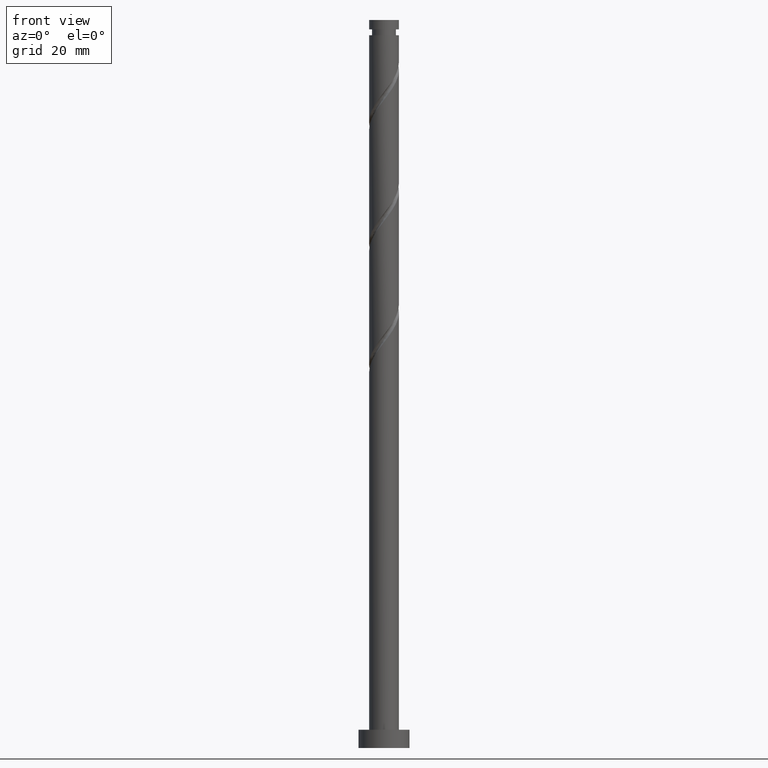
[diagram: clean part render]
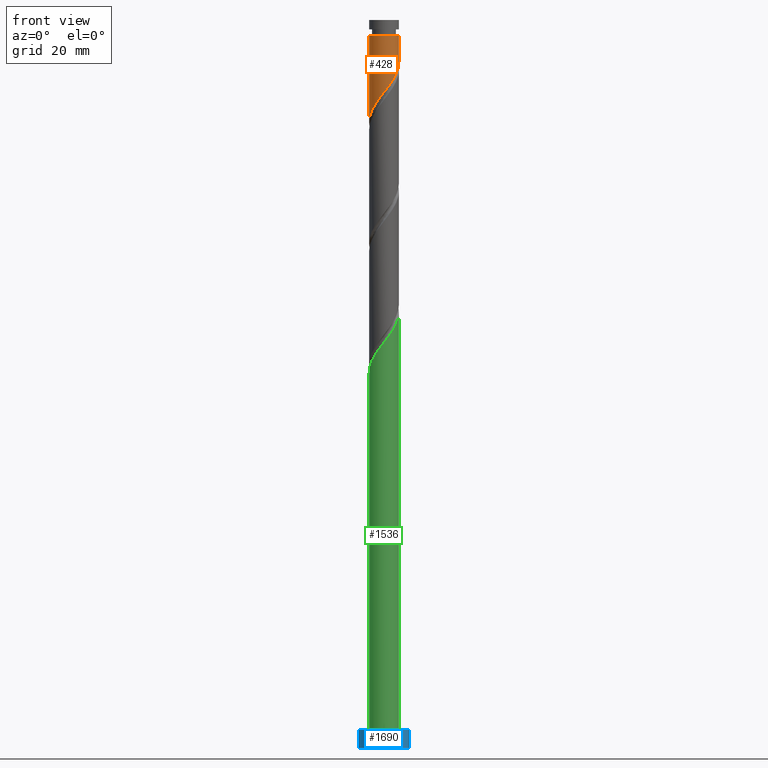
[diagram: same view with three faces highlighted in distinct colors, each labeled with its STEP entity id]
A machine part, front view with three faces highlighted in distinct colors.
Their STEP definitions:

[orange] entity #428 — the highlighted cylindrical surface (edge-blend (fillet) strip) has radius 4.1 mm, axis along (-0, -0, -1).
#15 = ORIENTED_EDGE ( 'NONE', *, *, #723, .T. ) ;
#24 = CARTESIAN_POINT ( 'NONE',  ( 0.2518459921076728891, -4.092257762685448164, 180.5317985425583061 ) ) ;
#42 = CARTESIAN_POINT ( 'NONE',  ( 0.7906019473366200367, -4.059101608817096363, 181.2262429870026779 ) ) ;
#51 = CARTESIAN_POINT ( 'NONE',  ( 3.910586083446199179, -1.344869433733589137, 186.7817985425582208 ) ) ;
#93 = CARTESIAN_POINT ( 'NONE',  ( 4.099999999999987210, 5.021051876504139497E-16, 195.8095763203360207 ) ) ;
#99 = EDGE_CURVE ( 'NONE', #527, #628, #1637, .T. ) ;
#161 = CARTESIAN_POINT ( 'NONE',  ( -3.418076185265831679, -2.264233908349265079, 174.9762429870027347 ) ) ;
#176 = CARTESIAN_POINT ( 'NONE',  ( 3.669922177373502681, -1.828023854336185305, 186.0873540981138490 ) ) ;
#187 = CARTESIAN_POINT ( 'NONE',  ( 1.302418794475820096, -3.887634921619589345, 181.9206874314471349 ) ) ;
#196 = CARTESIAN_POINT ( 'NONE',  ( 3.071745223192158480, -2.715581205524181474, 184.6984652092249348 ) ) ;
#217 = CIRCLE ( 'NONE', #430, 4.099999999999987210 ) ;
#298 = ORIENTED_EDGE ( 'NONE', *, *, #1639, .F. ) ;
#300 = CARTESIAN_POINT ( 'NONE',  ( 4.100000000000000533, 1.076672479940649209E-15, 188.5398096422127594 ) ) ;
#357 = LINE ( 'NONE', #893, #1253 ) ;
#413 = DIRECTION ( 'NONE',  ( -1.000000000000000000, 0.000000000000000000, 0.000000000000000000 ) ) ;
#417 = CARTESIAN_POINT ( 'NONE',  ( -3.887634921619589345, -1.302418794475820540, 173.5873540981138206 ) ) ;
#428 = ADVANCED_FACE ( 'NONE', ( #615 ), #1183, .T. ) ;
#430 = AXIS2_PLACEMENT_3D ( 'NONE', #823, #1628, #413 ) ;
#436 = CARTESIAN_POINT ( 'NONE',  ( -2.715581205524180142, -3.071745223192158480, 176.3651318758916204 ) ) ;
#452 = CARTESIAN_POINT ( 'NONE',  ( -4.100000000000000533, -2.168298744324918456E-15, 171.8731429755461022 ) ) ;
#526 = CARTESIAN_POINT ( 'NONE',  ( 4.099999999999999645, 5.021051876504147385E-16, 200.0000000000000000 ) ) ;
#527 = VERTEX_POINT ( 'NONE', #93 ) ;
#561 = CARTESIAN_POINT ( 'NONE',  ( 4.099999999999999645, -0.4120655042562831882, 188.0063832730234594 ) ) ;
#581 = CARTESIAN_POINT ( 'NONE',  ( -3.716168234422083216, -1.814235641615018713, 174.2817985425582208 ) ) ;
#610 = CARTESIAN_POINT ( 'NONE',  ( -4.100000000000000533, -2.168298744324918456E-15, 171.8731429755461022 ) ) ;
#615 = FACE_OUTER_BOUND ( 'NONE', #693, .T. ) ;
#628 = VERTEX_POINT ( 'NONE', #1704 ) ;
#693 = EDGE_LOOP ( 'NONE', ( #1191, #15, #1072, #298 ) ) ;
#703 = CARTESIAN_POINT ( 'NONE',  ( -4.059101608817095475, -0.7906019473366212580, 172.8929096536693635 ) ) ;
#712 = CARTESIAN_POINT ( 'NONE',  ( 3.429258271300806626, -2.311178274938779698, 185.3929096536693635 ) ) ;
#720 = CARTESIAN_POINT ( 'NONE',  ( -0.2869099631212743140, -4.125413916553799076, 179.8373540981138206 ) ) ;
#723 = EDGE_CURVE ( 'NONE', #527, #1065, #217, .T. ) ;
#755 = DIRECTION ( 'NONE',  ( -0.000000000000000000, -0.000000000000000000, -1.000000000000000000 ) ) ;
#757 = DIRECTION ( 'NONE',  ( -0.000000000000000000, -0.000000000000000000, -1.000000000000000000 ) ) ;
#823 = CARTESIAN_POINT ( 'NONE',  ( 0.000000000000000000, 0.000000000000000000, 195.8095763203360207 ) ) ;
#835 = CARTESIAN_POINT ( 'NONE',  ( 1.814235641615018713, -3.716168234422083216, 182.6151318758915352 ) ) ;
#843 = CARTESIAN_POINT ( 'NONE',  ( -1.828023854336183307, -3.669922177373504901, 177.7540207647804777 ) ) ;
#893 = CARTESIAN_POINT ( 'NONE',  ( -4.099999999999999645, 0.000000000000000000, 200.0000000000000000 ) ) ;
#961 =( BOUNDED_CURVE ( )  B_SPLINE_CURVE ( 2, ( #300, #561, #1406, #51, #176, #712, #196, #1251, #1397, #835, #187, #42, #24, #720, #1242, #1668, #843, #1097, #436, #984, #161, #581, #417, #703, #1116, #1228, #452 ),
 .UNSPECIFIED., .F., .T. ) 
 B_SPLINE_CURVE_WITH_KNOTS ( ( 3, 2, 2, 2, 2, 2, 2, 2, 2, 2, 2, 2, 2, 3 ),
 ( 0.3045317669814463502, 0.3125000000000000000, 0.3229166666666666852, 0.3333333333333333148, 0.3437500000000000000, 0.3541666666666666852, 0.3645833333333333148, 0.3750000000000000000, 0.3854166666666666852, 0.3958333333333333148, 0.4062500000000000000, 0.4166666666666666852, 0.4270833333333333148, 0.4295317669814463502 ),
 .UNSPECIFIED. ) 
 CURVE ( )  GEOMETRIC_REPRESENTATION_ITEM ( )  RATIONAL_B_SPLINE_CURVE ( ( 0.9062941362546419466, 0.9031415850403462509, 0.9090909090909213841, 0.9013135103398399739, 0.9090909090909213841, 0.9013135103398399739, 0.9090909090909213841, 0.9013135103398399739, 0.9090909090909213841, 0.9013135103398399739, 0.9090909090909213841, 0.9013135103398399739, 0.9090909090909213841, 0.9013135103398399739, 0.9090909090909213841, 0.9013135103398399739, 0.9090909090909213841, 0.9013135103398399739, 0.9090909090909213841, 0.9013135103398399739, 0.9090909090909213841, 0.9013135103398399739, 0.9090909090909213841, 0.9013135103398399739, 0.9090909090909213841, 0.9072628343904152182, 0.9062941362546419466 ) ) 
 REPRESENTATION_ITEM ( '' )  );
#977 = CARTESIAN_POINT ( 'NONE',  ( -4.099999999999987210, 0.000000000000000000, 195.8095763203360207 ) ) ;
#984 = CARTESIAN_POINT ( 'NONE',  ( -3.119984136109579254, -2.714232175083509446, 175.6706874314471065 ) ) ;
#1061 = DIRECTION ( 'NONE',  ( -0.000000000000000000, -0.000000000000000000, -1.000000000000000000 ) ) ;
#1065 = VERTEX_POINT ( 'NONE', #977 ) ;
#1072 = ORIENTED_EDGE ( 'NONE', *, *, #1409, .T. ) ;
#1097 = CARTESIAN_POINT ( 'NONE',  ( -2.311178274938777477, -3.429258271300808403, 177.0595763203359922 ) ) ;
#1116 = CARTESIAN_POINT ( 'NONE',  ( -4.092257762685448164, -0.2518459921076742214, 172.1984652092249632 ) ) ;
#1183 = CYLINDRICAL_SURFACE ( 'NONE', #1618, 4.099999999999999645 ) ;
#1191 = ORIENTED_EDGE ( 'NONE', *, *, #99, .F. ) ;
#1214 = VERTEX_POINT ( 'NONE', #610 ) ;
#1228 = CARTESIAN_POINT ( 'NONE',  ( -4.100000000000000533, -0.1260420017964555273, 172.0363066635742371 ) ) ;
#1242 = CARTESIAN_POINT ( 'NONE',  ( -0.8158896984274304209, -4.018000000000000682, 179.1429096536694487 ) ) ;
#1251 = CARTESIAN_POINT ( 'NONE',  ( 2.714232175083508558, -3.119984136109578809, 184.0040207647804493 ) ) ;
#1253 = VECTOR ( 'NONE', #757, 1000.000000000000000 ) ;
#1337 = VECTOR ( 'NONE', #1061, 1000.000000000000000 ) ;
#1397 = CARTESIAN_POINT ( 'NONE',  ( 2.264233908349262858, -3.418076185265833011, 183.3095763203360491 ) ) ;
#1406 = CARTESIAN_POINT ( 'NONE',  ( 4.018000000000000682, -0.8158896984274305320, 187.4762429870026779 ) ) ;
#1409 = EDGE_CURVE ( 'NONE', #1065, #1214, #357, .T. ) ;
#1596 = DIRECTION ( 'NONE',  ( -1.000000000000000000, 0.000000000000000000, 0.000000000000000000 ) ) ;
#1618 = AXIS2_PLACEMENT_3D ( 'NONE', #1728, #755, #1596 ) ;
#1628 = DIRECTION ( 'NONE',  ( -0.000000000000000000, -0.000000000000000000, -1.000000000000000000 ) ) ;
#1637 = LINE ( 'NONE', #526, #1337 ) ;
#1639 = EDGE_CURVE ( 'NONE', #628, #1214, #961, .T. ) ;
#1668 = CARTESIAN_POINT ( 'NONE',  ( -1.344869433733588027, -3.910586083446200956, 178.4484652092249064 ) ) ;
#1704 = CARTESIAN_POINT ( 'NONE',  ( 4.100000000000000533, 1.076672479940649209E-15, 188.5398096422127594 ) ) ;
#1728 = CARTESIAN_POINT ( 'NONE',  ( 0.000000000000000000, 0.000000000000000000, 200.0000000000000000 ) ) ;

[blue] entity #1690 — the highlighted cylindrical surface (edge-blend (fillet) strip) has radius 7 mm, axis along (-0, -0, -1).
#33 = CARTESIAN_POINT ( 'NONE',  ( 0.000000000000000000, 0.000000000000000000, 5.000000000000000000 ) ) ;
#38 = CIRCLE ( 'NONE', #1307, 7.000000000000000000 ) ;
#82 = VERTEX_POINT ( 'NONE', #1487 ) ;
#102 = CARTESIAN_POINT ( 'NONE',  ( -7.000000000000000000, 0.000000000000000000, 5.000000000000000000 ) ) ;
#111 = CARTESIAN_POINT ( 'NONE',  ( 7.000000000000000000, 8.572527594031473190E-16, 5.000000000000000000 ) ) ;
#182 = CIRCLE ( 'NONE', #1223, 7.000000000000000000 ) ;
#212 = EDGE_CURVE ( 'NONE', #1486, #82, #692, .T. ) ;
#246 = EDGE_CURVE ( 'NONE', #1587, #82, #38, .T. ) ;
#250 = LINE ( 'NONE', #102, #294 ) ;
#284 = EDGE_CURVE ( 'NONE', #1662, #1486, #182, .T. ) ;
#294 = VECTOR ( 'NONE', #1569, 1000.000000000000000 ) ;
#299 = CARTESIAN_POINT ( 'NONE',  ( 7.000000000000000000, 8.572527594031473190E-16, 5.000000000000000000 ) ) ;
#317 = DIRECTION ( 'NONE',  ( 1.000000000000000000, 0.000000000000000000, 0.000000000000000000 ) ) ;
#393 = DIRECTION ( 'NONE',  ( -0.000000000000000000, -0.000000000000000000, -1.000000000000000000 ) ) ;
#451 = DIRECTION ( 'NONE',  ( 1.000000000000000000, 0.000000000000000000, 0.000000000000000000 ) ) ;
#472 = DIRECTION ( 'NONE',  ( 0.000000000000000000, 0.000000000000000000, 1.000000000000000000 ) ) ;
#589 = CARTESIAN_POINT ( 'NONE',  ( -7.000000000000000000, 0.000000000000000000, 5.000000000000000000 ) ) ;
#594 = EDGE_CURVE ( 'NONE', #1662, #1587, #250, .T. ) ;
#617 = ORIENTED_EDGE ( 'NONE', *, *, #246, .T. ) ;
#692 = LINE ( 'NONE', #299, #884 ) ;
#695 = CYLINDRICAL_SURFACE ( 'NONE', #1680, 7.000000000000000000 ) ;
#884 = VECTOR ( 'NONE', #393, 1000.000000000000000 ) ;
#964 = DIRECTION ( 'NONE',  ( -0.000000000000000000, -0.000000000000000000, -1.000000000000000000 ) ) ;
#983 = CARTESIAN_POINT ( 'NONE',  ( 0.000000000000000000, 0.000000000000000000, 5.000000000000000000 ) ) ;
#1202 = ORIENTED_EDGE ( 'NONE', *, *, #284, .F. ) ;
#1223 = AXIS2_PLACEMENT_3D ( 'NONE', #983, #1414, #451 ) ;
#1307 = AXIS2_PLACEMENT_3D ( 'NONE', #1687, #472, #317 ) ;
#1330 = ORIENTED_EDGE ( 'NONE', *, *, #594, .T. ) ;
#1371 = FACE_OUTER_BOUND ( 'NONE', #1510, .T. ) ;
#1414 = DIRECTION ( 'NONE',  ( 0.000000000000000000, 0.000000000000000000, 1.000000000000000000 ) ) ;
#1469 = CARTESIAN_POINT ( 'NONE',  ( -7.000000000000000000, 0.000000000000000000, 0.000000000000000000 ) ) ;
#1486 = VERTEX_POINT ( 'NONE', #111 ) ;
#1487 = CARTESIAN_POINT ( 'NONE',  ( 7.000000000000000000, 8.572527594031473190E-16, 0.000000000000000000 ) ) ;
#1509 = DIRECTION ( 'NONE',  ( -1.000000000000000000, 0.000000000000000000, 0.000000000000000000 ) ) ;
#1510 = EDGE_LOOP ( 'NONE', ( #1736, #1202, #1330, #617 ) ) ;
#1569 = DIRECTION ( 'NONE',  ( -0.000000000000000000, -0.000000000000000000, -1.000000000000000000 ) ) ;
#1587 = VERTEX_POINT ( 'NONE', #1469 ) ;
#1662 = VERTEX_POINT ( 'NONE', #589 ) ;
#1680 = AXIS2_PLACEMENT_3D ( 'NONE', #33, #964, #1509 ) ;
#1687 = CARTESIAN_POINT ( 'NONE',  ( 0.000000000000000000, 0.000000000000000000, 0.000000000000000000 ) ) ;
#1690 = ADVANCED_FACE ( 'NONE', ( #1371 ), #695, .T. ) ;
#1736 = ORIENTED_EDGE ( 'NONE', *, *, #212, .F. ) ;

[green] entity #1536 — the highlighted cylindrical surface (edge-blend (fillet) strip) has radius 4.1 mm, axis along (-0, -0, -1).
#16 = CARTESIAN_POINT ( 'NONE',  ( 4.099999999999999645, 5.021051876504147385E-16, 200.0000000000000000 ) ) ;
#21 = EDGE_CURVE ( 'NONE', #464, #818, #154, .T. ) ;
#71 = VECTOR ( 'NONE', #862, 1000.000000000000000 ) ;
#107 = CARTESIAN_POINT ( 'NONE',  ( -3.071745223192163810, -2.715581205524180142, 106.9206874314470923 ) ) ;
#136 = CARTESIAN_POINT ( 'NONE',  ( -0.2518459921076766084, -4.092257762685451716, 111.0873540981137637 ) ) ;
#154 = CIRCLE ( 'NONE', #1507, 4.099999999999999645 ) ;
#179 = CARTESIAN_POINT ( 'NONE',  ( 3.716168234422086769, -1.814235641615024042, 117.3373540981137921 ) ) ;
#189 = CARTESIAN_POINT ( 'NONE',  ( 3.887634921619593342, -1.302418794475825203, 118.0317985425582208 ) ) ;
#199 = CARTESIAN_POINT ( 'NONE',  ( 4.100000000000004974, -0.1260420017964651862, 119.5828459770978043 ) ) ;
#276 = DIRECTION ( 'NONE',  ( -0.000000000000000000, -0.000000000000000000, -1.000000000000000000 ) ) ;
#320 = CARTESIAN_POINT ( 'NONE',  ( -0.7906019473366246997, -4.059101608817101692, 110.3929096536693493 ) ) ;
#327 = LINE ( 'NONE', #16, #71 ) ;
#337 = ORIENTED_EDGE ( 'NONE', *, *, #1610, .F. ) ;
#339 = CARTESIAN_POINT ( 'NONE',  ( 4.100000000000004974, 4.635673177522212615E-16, 119.7460096651259391 ) ) ;
#385 = ORIENTED_EDGE ( 'NONE', *, *, #21, .T. ) ;
#410 = CYLINDRICAL_SURFACE ( 'NONE', #1566, 4.099999999999999645 ) ;
#438 = CARTESIAN_POINT ( 'NONE',  ( 0.2869099631212713164, -4.125413916553803517, 111.7817985425582350 ) ) ;
#464 = VERTEX_POINT ( 'NONE', #1150 ) ;
#512 = CARTESIAN_POINT ( 'NONE',  ( -1.814235641615024042, -3.716168234422086769, 109.0040207647804635 ) ) ;
#644 = CARTESIAN_POINT ( 'NONE',  ( -2.714232175083516552, -3.119984136109581918, 107.6151318758915920 ) ) ;
#650 = DIRECTION ( 'NONE',  ( -1.000000000000000000, 0.000000000000000000, 0.000000000000000000 ) ) ;
#652 = EDGE_LOOP ( 'NONE', ( #337, #797, #1188, #385 ) ) ;
#654 = CARTESIAN_POINT ( 'NONE',  ( -1.302418794475824981, -3.887634921619593342, 109.6984652092248780 ) ) ;
#666 = VERTEX_POINT ( 'NONE', #1166 ) ;
#674 = CARTESIAN_POINT ( 'NONE',  ( 4.059101608817101692, -0.7906019473366266981, 118.7262429870026779 ) ) ;
#722 = CARTESIAN_POINT ( 'NONE',  ( 4.092257762685450828, -0.2518459921076786068, 119.4206874314471065 ) ) ;
#772 =( BOUNDED_CURVE ( )  B_SPLINE_CURVE ( 2, ( #1584, #1595, #1325, #912, #777, #1316, #107, #644, #1180, #512, #654, #320, #136, #438, #1660, #937, #1408, #994, #1529, #986, #1682, #179, #189, #674, #722, #199, #1135 ),
 .UNSPECIFIED., .F., .T. ) 
 B_SPLINE_CURVE_WITH_KNOTS ( ( 3, 2, 2, 2, 2, 2, 2, 2, 2, 2, 2, 2, 2, 3 ),
 ( 0.05453176698144637097, 0.06250000000000000000, 0.07291666666666662966, 0.08333333333333337034, 0.09375000000000000000, 0.1041666666666666297, 0.1145833333333333703, 0.1250000000000000000, 0.1354166666666666297, 0.1458333333333333703, 0.1562500000000000000, 0.1666666666666666297, 0.1770833333333333703, 0.1795317669814462946 ),
 .UNSPECIFIED. ) 
 CURVE ( )  GEOMETRIC_REPRESENTATION_ITEM ( )  RATIONAL_B_SPLINE_CURVE ( ( 0.9062941362546472757, 0.9031415850403514689, 0.9090909090909271573, 0.9013135103398453030, 0.9090909090909271573, 0.9013135103398453030, 0.9090909090909271573, 0.9013135103398453030, 0.9090909090909271573, 0.9013135103398453030, 0.9090909090909271573, 0.9013135103398453030, 0.9090909090909271573, 0.9013135103398453030, 0.9090909090909271573, 0.9013135103398453030, 0.9090909090909271573, 0.9013135103398453030, 0.9090909090909271573, 0.9013135103398453030, 0.9090909090909271573, 0.9013135103398453030, 0.9090909090909271573, 0.9013135103398453030, 0.9090909090909271573, 0.9072628343904207693, 0.9062941362546472757 ) ) 
 REPRESENTATION_ITEM ( '' )  );
#777 = CARTESIAN_POINT ( 'NONE',  ( -3.669922177373510674, -1.828023854336183529, 105.5317985425582350 ) ) ;
#797 = ORIENTED_EDGE ( 'NONE', *, *, #1012, .F. ) ;
#818 = VERTEX_POINT ( 'NONE', #1695 ) ;
#852 = EDGE_CURVE ( 'NONE', #666, #464, #1310, .T. ) ;
#862 = DIRECTION ( 'NONE',  ( -0.000000000000000000, -0.000000000000000000, -1.000000000000000000 ) ) ;
#872 = CARTESIAN_POINT ( 'NONE',  ( 0.000000000000000000, 0.000000000000000000, 5.000000000000000000 ) ) ;
#912 = CARTESIAN_POINT ( 'NONE',  ( -3.910586083446208061, -1.344869433733586916, 104.8373540981138348 ) ) ;
#937 = CARTESIAN_POINT ( 'NONE',  ( 1.344869433733586916, -3.910586083446208061, 113.1706874314471349 ) ) ;
#944 = FACE_OUTER_BOUND ( 'NONE', #652, .T. ) ;
#950 = CARTESIAN_POINT ( 'NONE',  ( 0.000000000000000000, 0.000000000000000000, 200.0000000000000000 ) ) ;
#986 = CARTESIAN_POINT ( 'NONE',  ( 3.119984136109581918, -2.714232175083516552, 115.9484652092249348 ) ) ;
#994 = CARTESIAN_POINT ( 'NONE',  ( 2.311178274938778809, -3.429258271300815064, 114.5595763203360349 ) ) ;
#1012 = EDGE_CURVE ( 'NONE', #666, #1334, #772, .T. ) ;
#1135 = CARTESIAN_POINT ( 'NONE',  ( 4.100000000000004974, 4.635673177522212615E-16, 119.7460096651259391 ) ) ;
#1150 = CARTESIAN_POINT ( 'NONE',  ( -4.099999999999999645, 0.000000000000000000, 5.000000000000000000 ) ) ;
#1166 = CARTESIAN_POINT ( 'NONE',  ( -4.100000000000004974, -2.990756888724007897E-15, 103.0793429984593104 ) ) ;
#1180 = CARTESIAN_POINT ( 'NONE',  ( -2.264233908349268631, -3.418076185265834788, 108.3095763203359780 ) ) ;
#1188 = ORIENTED_EDGE ( 'NONE', *, *, #852, .T. ) ;
#1190 = DIRECTION ( 'NONE',  ( -0.000000000000000000, -0.000000000000000000, -1.000000000000000000 ) ) ;
#1309 = VECTOR ( 'NONE', #1190, 1000.000000000000000 ) ;
#1310 = LINE ( 'NONE', #1473, #1309 ) ;
#1316 = CARTESIAN_POINT ( 'NONE',  ( -3.429258271300815064, -2.311178274938779698, 106.2262429870027063 ) ) ;
#1325 = CARTESIAN_POINT ( 'NONE',  ( -4.018000000000004235, -0.8158896984274297548, 104.1429096536693493 ) ) ;
#1334 = VERTEX_POINT ( 'NONE', #339 ) ;
#1408 = CARTESIAN_POINT ( 'NONE',  ( 1.828023854336181975, -3.669922177373511119, 113.8651318758915494 ) ) ;
#1417 = DIRECTION ( 'NONE',  ( 0.000000000000000000, 0.000000000000000000, 1.000000000000000000 ) ) ;
#1473 = CARTESIAN_POINT ( 'NONE',  ( -4.099999999999999645, 0.000000000000000000, 200.0000000000000000 ) ) ;
#1507 = AXIS2_PLACEMENT_3D ( 'NONE', #872, #1417, #1575 ) ;
#1529 = CARTESIAN_POINT ( 'NONE',  ( 2.715581205524179698, -3.071745223192164698, 115.2540207647804635 ) ) ;
#1536 = ADVANCED_FACE ( 'NONE', ( #944 ), #410, .T. ) ;
#1566 = AXIS2_PLACEMENT_3D ( 'NONE', #950, #276, #650 ) ;
#1575 = DIRECTION ( 'NONE',  ( 1.000000000000000000, 0.000000000000000000, 0.000000000000000000 ) ) ;
#1584 = CARTESIAN_POINT ( 'NONE',  ( -4.100000000000004974, -2.990756888724007897E-15, 103.0793429984593104 ) ) ;
#1595 = CARTESIAN_POINT ( 'NONE',  ( -4.100000000000005862, -0.4120655042562803572, 103.6127693676485677 ) ) ;
#1610 = EDGE_CURVE ( 'NONE', #1334, #818, #327, .T. ) ;
#1660 = CARTESIAN_POINT ( 'NONE',  ( 0.8158896984274295328, -4.018000000000004235, 112.4762429870026494 ) ) ;
#1682 = CARTESIAN_POINT ( 'NONE',  ( 3.418076185265832567, -2.264233908349269964, 116.6429096536693635 ) ) ;
#1695 = CARTESIAN_POINT ( 'NONE',  ( 4.099999999999999645, 5.021051876504147385E-16, 5.000000000000000000 ) ) ;